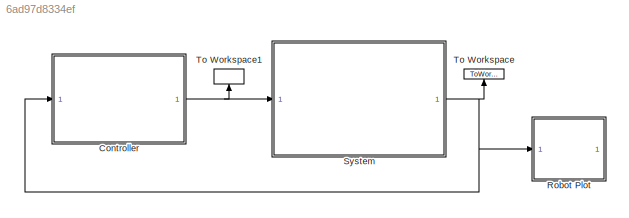
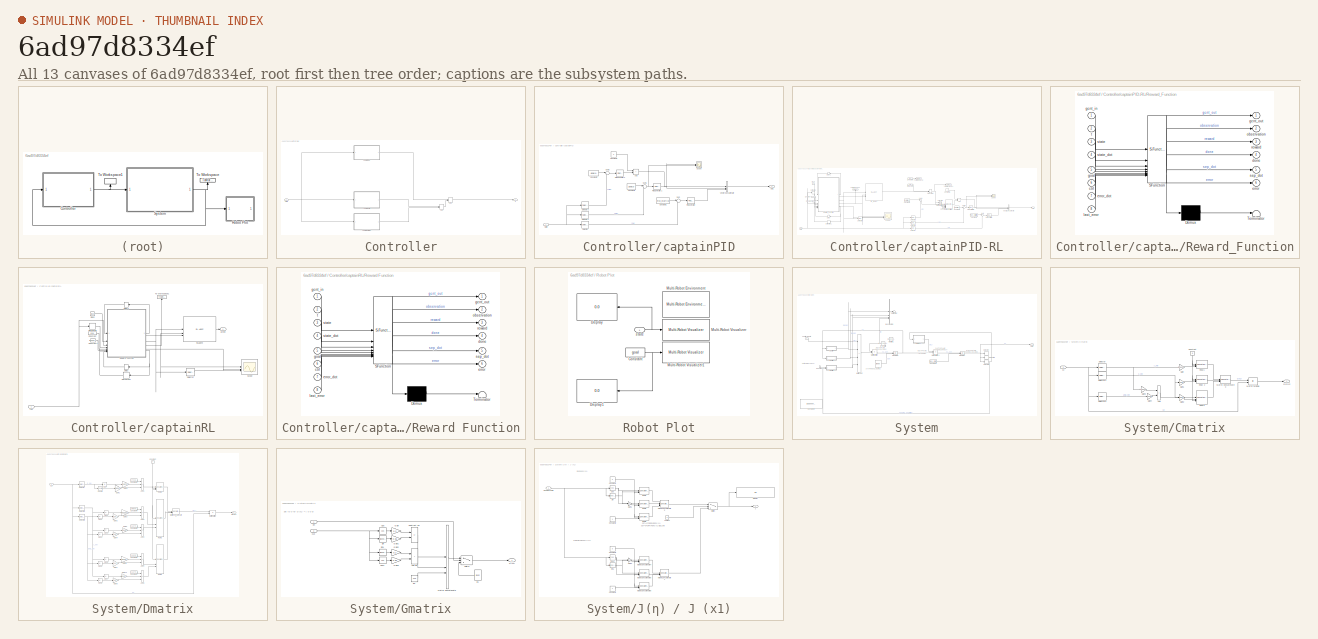
[diagram: thumbnail index - all 13 canvases of the model, root first then tree order]
MODEL slx_6ad97d8334ef
KIND model
CONFIG AbsTol = auto
CONFIG EnableMultiTasking = off
CONFIG FixedStep = 0.010
CONFIG InitFcn = [msv_start, goal] = randomStart(test);
CONFIG MaxStep = auto
CONFIG MinStep = auto
CONFIG RelTol = 1e-3
CONFIG SampleTimeConstraint = Unconstrained
CONFIG SolverName = ode4
CONFIG StartTime = 0.0
CONFIG StopTime = 20
BLOCK [SubSystem] Controller
BLOCK [SubSystem] Controller/captainPID
  Commented = on
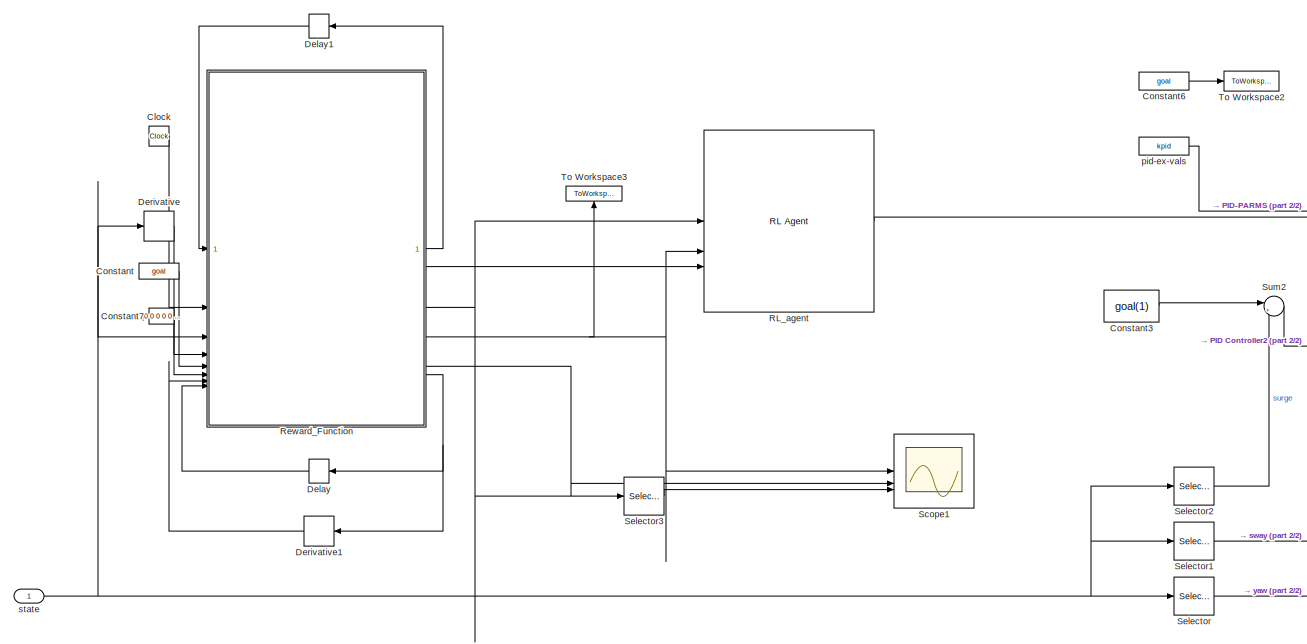
[diagram: Controller/captainPID-RL - part 1/2, left side, full height]
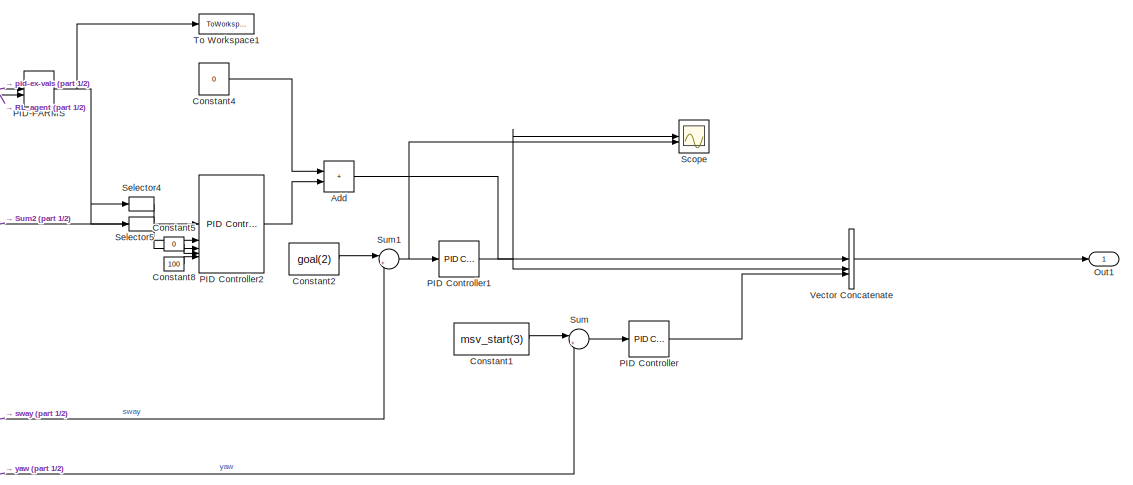
[diagram: Controller/captainPID-RL - part 2/2, middle right region]
BLOCK [SubSystem] Controller/captainPID-RL
BLOCK [Sum] Controller/captainPID-RL/Add
  IconShape = rectangular
BLOCK [Clock] Controller/captainPID-RL/Clock
BLOCK [Constant] Controller/captainPID-RL/Constant
  Value = goal
BLOCK [Constant] Controller/captainPID-RL/Constant1
  Value = msv_start(3)
  VectorParams1D = off
BLOCK [Constant] Controller/captainPID-RL/Constant2
  Value = goal(2)
  VectorParams1D = off
BLOCK [Constant] Controller/captainPID-RL/Constant3
  Value = goal(1)
  VectorParams1D = off
BLOCK [Constant] Controller/captainPID-RL/Constant4
  Value = 0
  VectorParams1D = off
BLOCK [Constant] Controller/captainPID-RL/Constant5
  Value = 0
  VectorParams1D = off
BLOCK [Constant] Controller/captainPID-RL/Constant6
  Value = goal
  VectorParams1D = off
BLOCK [Constant] Controller/captainPID-RL/Constant7
  Value = [0 0 0 0 0 0 ]'
  VectorParams1D = off
BLOCK [Constant] Controller/captainPID-RL/Constant8
  Value = 100
  VectorParams1D = off
BLOCK [Delay] Controller/captainPID-RL/Delay
  DelayLength = 1
  InputPortMap = u0
  NameLocation = top
BLOCK [Delay] Controller/captainPID-RL/Delay1
  DelayLength = 1
  InputPortMap = u0
  NameLocation = top
BLOCK [Derivative] Controller/captainPID-RL/Derivative
BLOCK [Derivative] Controller/captainPID-RL/Derivative1
  NameLocation = top
BLOCK [Outport] Controller/captainPID-RL/Out1
BLOCK [Reference] Controller/captainPID-RL/PID Controller  REF=slpidlib/PID Controller
  LibrarySourceBlock = simulink/Continuous/PID Controller
  SourceBlock = slpidlib/PID Controller
  SourceType = PID 1dof
BLOCK [Reference] Controller/captainPID-RL/PID Controller1  REF=slpidlib/PID Controller
  LibrarySourceBlock = simulink/Continuous/PID Controller
  SourceBlock = slpidlib/PID Controller
  SourceType = PID 1dof
BLOCK [Reference] Controller/captainPID-RL/PID Controller2  REF=slpidlib/PID Controller
  LibrarySourceBlock = simulink/Continuous/PID Controller
  SourceBlock = slpidlib/PID Controller
  SourceType = PID 1dof
BLOCK [ManualSwitch] Controller/captainPID-RL/PID-PARMS
  CurrentSetting = 0
BLOCK [Reference] Controller/captainPID-RL/RL_agent  REF=rllib/RL Agent
  SourceBlock = rllib/RL Agent
  SourceType = RL Agent
BLOCK [SubSystem] Controller/captainPID-RL/Reward_Function
  ErrorFcn = Stateflow.Translate.translate
  LibrarySourceBlock = simulink/User-Defined\nFunctions/MATLAB Function
  PermitHierarchicalResolution = ExplicitOnly
  SFBlockType = MATLAB Function
  TreatAsAtomicUnit = on
BLOCK [Demux] Controller/captainPID-RL/Reward_Function/ Demux 
  Outputs = 1
BLOCK [S-Function] Controller/captainPID-RL/Reward_Function/ SFunction 
  EnableBusSupport = on
  FunctionName = sf_sfun
  PortCounts = [8 7]
  SFcnIsStateOwnerBlock = off
  SFunctionDeploymentMode = off
  Tag = Stateflow S-Function 1
BLOCK [Terminator] Controller/captainPID-RL/Reward_Function/ Terminator 
BLOCK [Inport] Controller/captainPID-RL/Reward_Function/ctrl
  Port = 6
BLOCK [Outport] Controller/captainPID-RL/Reward_Function/done
  Port = 4
BLOCK [Outport] Controller/captainPID-RL/Reward_Function/error
  Port = 6
BLOCK [Inport] Controller/captainPID-RL/Reward_Function/error_dot
  Port = 7
BLOCK [Inport] Controller/captainPID-RL/Reward_Function/gcnt_in
BLOCK [Outport] Controller/captainPID-RL/Reward_Function/gcnt_out
BLOCK [Inport] Controller/captainPID-RL/Reward_Function/goal
  Port = 5
BLOCK [Inport] Controller/captainPID-RL/Reward_Function/last_error
  Port = 8
BLOCK [Outport] Controller/captainPID-RL/Reward_Function/observation
  Port = 2
BLOCK [Outport] Controller/captainPID-RL/Reward_Function/reward
  Port = 3
BLOCK [Outport] Controller/captainPID-RL/Reward_Function/sep_dot
  Port = 5
BLOCK [Inport] Controller/captainPID-RL/Reward_Function/state
  Port = 3
BLOCK [Inport] Controller/captainPID-RL/Reward_Function/state_dot
  Port = 4
BLOCK [Inport] Controller/captainPID-RL/Reward_Function/t
  Port = 2
BLOCK [Scope] Controller/captainPID-RL/Scope
  Floating = off
  NumInputPorts = 2
  ScopeSpecificationString = Simulink.scopes.TimeScopeBlockCfg('CurrentConfiguration', extmgr.ConfigurationSet(extmgr.Configuration('Core','General UI',true),extmgr.Configuration('Core','Source UI',true),extmgr.Configuration('Sources','WiredSimulink',true,'DataLoggingVariableName','ScopeData1'),extmgr.Configuration('Visuals','Time Domain',true,'SerializedDisplays',{struct('MinYLimReal','-7.66449','MaxYLimReal','17.51828','YLa...<+1385ch>
BLOCK [Scope] Controller/captainPID-RL/Scope1
  Commented = on
  Floating = off
  NumInputPorts = 3
  ScopeSpecificationString = Simulink.scopes.TimeScopeBlockCfg('CurrentConfiguration', extmgr.ConfigurationSet(extmgr.Configuration('Core','General UI',true),extmgr.Configuration('Core','Source UI',true),extmgr.Configuration('Sources','WiredSimulink',true),extmgr.Configuration('Visuals','Time Domain',true,'SerializedDisplays',{struct('MinYLimReal','-1.03091','MaxYLimReal','1.06713','YLabelReal','','MinYLimMag','0.00000','MaxY...<+1406ch>
BLOCK [Selector] Controller/captainPID-RL/Selector
  IndexOptions = Index vector (dialog)
  Indices = 3
  InputPortWidth = 3
  OutputSizes = 1
BLOCK [Selector] Controller/captainPID-RL/Selector1
  IndexOptions = Index vector (dialog)
  Indices = 2
  InputPortWidth = 3
  OutputSizes = 1
BLOCK [Selector] Controller/captainPID-RL/Selector2
  IndexOptions = Index vector (dialog)
  Indices = 1
  InputPortWidth = 3
  OutputSizes = 1
BLOCK [Selector] Controller/captainPID-RL/Selector3
  Commented = on
  IndexOptions = Index vector (dialog)
  Indices = 7
  InputPortWidth = 9
  OutputSizes = 1
BLOCK [Selector] Controller/captainPID-RL/Selector4
  IndexOptions = Index vector (dialog)
  Indices = 1
  InputPortWidth = 2
  OutputSizes = 1
BLOCK [Selector] Controller/captainPID-RL/Selector5
  IndexOptions = Index vector (dialog)
  Indices = 2
  InputPortWidth = 2
  OutputSizes = 1
BLOCK [Sum] Controller/captainPID-RL/Sum
  Inputs = |+-
BLOCK [Sum] Controller/captainPID-RL/Sum1
  Inputs = |+-
BLOCK [Sum] Controller/captainPID-RL/Sum2
  Inputs = |+-
BLOCK [ToWorkspace] Controller/captainPID-RL/To Workspace1
  FixptAsFi = on
  MaxDataPoints = inf
  SampleTime = -1
  SaveFormat = Timeseries
  VariableName = kpid
BLOCK [ToWorkspace] Controller/captainPID-RL/To Workspace2
  FixptAsFi = on
  MaxDataPoints = inf
  SampleTime = -1
  SaveFormat = Timeseries
  VariableName = goal
BLOCK [ToWorkspace] Controller/captainPID-RL/To Workspace3
  FixptAsFi = on
  MaxDataPoints = inf
  NameLocation = top
  SampleTime = -1
  SaveFormat = Timeseries
  VariableName = reward
BLOCK [Concatenate] Controller/captainPID-RL/Vector Concatenate
  NumInputs = 3
BLOCK [Constant] Controller/captainPID-RL/pid-ex-vals
  Commented = on
  Value = kpid
  VectorParams1D = off
BLOCK [Inport] Controller/captainPID-RL/state
  NameLocation = left
BLOCK [Sum] Controller/captainPID/Add
  IconShape = rectangular
BLOCK [Constant] Controller/captainPID/Constant1
  Value = msv_start(3)
  VectorParams1D = off
BLOCK [Constant] Controller/captainPID/Constant2
  Value = goal(2)
  VectorParams1D = off
BLOCK [Constant] Controller/captainPID/Constant3
  Value = goal(1)
  VectorParams1D = off
BLOCK [Constant] Controller/captainPID/Constant4
  Value = 0
  VectorParams1D = off
BLOCK [Outport] Controller/captainPID/Out1
BLOCK [Reference] Controller/captainPID/PID Controller  REF=slpidlib/PID Controller
  LibrarySourceBlock = simulink/Continuous/PID Controller
  SourceBlock = slpidlib/PID Controller
  SourceType = PID 1dof
BLOCK [Reference] Controller/captainPID/PID Controller1  REF=slpidlib/PID Controller
  LibrarySourceBlock = simulink/Continuous/PID Controller
  SourceBlock = slpidlib/PID Controller
  SourceType = PID 1dof
BLOCK [Reference] Controller/captainPID/PID Controller2  REF=slpidlib/PID Controller
  LibrarySourceBlock = simulink/Continuous/PID Controller
  SourceBlock = slpidlib/PID Controller
  SourceType = PID 1dof
BLOCK [Scope] Controller/captainPID/Scope
  Floating = off
  NumInputPorts = 2
  ScopeSpecificationString = Simulink.scopes.TimeScopeBlockCfg('CurrentConfiguration', extmgr.ConfigurationSet(extmgr.Configuration('Core','General UI',true),extmgr.Configuration('Core','Source UI',true),extmgr.Configuration('Sources','WiredSimulink',true,'DataLoggingVariableName','ScopeData1'),extmgr.Configuration('Visuals','Time Domain',true,'SerializedDisplays',{struct('MinYLimReal','-7.66449','MaxYLimReal','17.51828','YLa...<+1385ch>
BLOCK [Selector] Controller/captainPID/Selector
  IndexOptions = Index vector (dialog)
  Indices = 3
  InputPortWidth = 3
  OutputSizes = 1
BLOCK [Selector] Controller/captainPID/Selector1
  IndexOptions = Index vector (dialog)
  Indices = 2
  InputPortWidth = 3
  OutputSizes = 1
BLOCK [Selector] Controller/captainPID/Selector2
  IndexOptions = Index vector (dialog)
  Indices = 1
  InputPortWidth = 3
  OutputSizes = 1
BLOCK [Sum] Controller/captainPID/Sum
  Inputs = |+-
BLOCK [Sum] Controller/captainPID/Sum1
  Inputs = |+-
BLOCK [Sum] Controller/captainPID/Sum2
  Inputs = |+-
BLOCK [Concatenate] Controller/captainPID/Vector Concatenate
  NumInputs = 3
BLOCK [Inport] Controller/captainPID/state
  NameLocation = left
BLOCK [SubSystem] Controller/captainRL
  Commented = on
BLOCK [Clock] Controller/captainRL/Clock
BLOCK [Constant] Controller/captainRL/Constant
  Value = goal
BLOCK [Constant] Controller/captainRL/Constant1
  Value = [0 0 0 0 0 0 ]'
  VectorParams1D = off
BLOCK [Delay] Controller/captainRL/Delay
  DelayLength = 1
  InputPortMap = u0
  NameLocation = top
BLOCK [Delay] Controller/captainRL/Delay1
  DelayLength = 1
  InputPortMap = u0
  NameLocation = top
BLOCK [Derivative] Controller/captainRL/Derivative
BLOCK [Derivative] Controller/captainRL/Derivative1
  NameLocation = top
BLOCK [Inport] Controller/captainRL/In1
BLOCK [Reference] Controller/captainRL/RLagent  REF=rllib/RL Agent
  SourceBlock = rllib/RL Agent
  SourceType = RL Agent
BLOCK [SubSystem] Controller/captainRL/Reward Function
  ErrorFcn = Stateflow.Translate.translate
  LibrarySourceBlock = simulink/User-Defined\nFunctions/MATLAB Function
  PermitHierarchicalResolution = ExplicitOnly
  SFBlockType = MATLAB Function
  TreatAsAtomicUnit = on
BLOCK [Demux] Controller/captainRL/Reward Function/ Demux 
  Outputs = 1
BLOCK [S-Function] Controller/captainRL/Reward Function/ SFunction 
  EnableBusSupport = on
  FunctionName = sf_sfun
  PortCounts = [8 7]
  SFcnIsStateOwnerBlock = off
  SFunctionDeploymentMode = off
  Tag = Stateflow S-Function 2
BLOCK [Terminator] Controller/captainRL/Reward Function/ Terminator 
BLOCK [Inport] Controller/captainRL/Reward Function/ctrl
  Port = 6
BLOCK [Outport] Controller/captainRL/Reward Function/done
  Port = 4
BLOCK [Outport] Controller/captainRL/Reward Function/error
  Port = 6
BLOCK [Inport] Controller/captainRL/Reward Function/error_dot
  Port = 7
BLOCK [Inport] Controller/captainRL/Reward Function/gcnt_in
BLOCK [Outport] Controller/captainRL/Reward Function/gcnt_out
BLOCK [Inport] Controller/captainRL/Reward Function/goal
  Port = 5
BLOCK [Inport] Controller/captainRL/Reward Function/last_error
  Port = 8
BLOCK [Outport] Controller/captainRL/Reward Function/observation
  Port = 2
BLOCK [Outport] Controller/captainRL/Reward Function/reward
  Port = 3
BLOCK [Outport] Controller/captainRL/Reward Function/sep_dot
  Port = 5
BLOCK [Inport] Controller/captainRL/Reward Function/state
  Port = 3
BLOCK [Inport] Controller/captainRL/Reward Function/state_dot
  Port = 4
BLOCK [Inport] Controller/captainRL/Reward Function/t
  Port = 2
BLOCK [Scope] Controller/captainRL/Scope
  Floating = off
  NumInputPorts = 3
  ScopeSpecificationString = Simulink.scopes.TimeScopeBlockCfg('CurrentConfiguration', extmgr.ConfigurationSet(extmgr.Configuration('Core','General UI',true),extmgr.Configuration('Core','Source UI',true),extmgr.Configuration('Sources','WiredSimulink',true),extmgr.Configuration('Visuals','Time Domain',true,'SerializedDisplays',{struct('MinYLimReal','-1.03091','MaxYLimReal','1.06713','YLabelReal','','MinYLimMag','0.00000','MaxY...<+1406ch>
BLOCK [Selector] Controller/captainRL/Selector
  IndexOptions = Index vector (dialog)
  Indices = 7
  InputPortWidth = 9
  OutputSizes = 1
BLOCK [ToWorkspace] Controller/captainRL/To Workspace1
  FixptAsFi = on
  MaxDataPoints = inf
  NameLocation = right
  SampleTime = -1
  SaveFormat = Timeseries
  VariableName = reward
BLOCK [Outport] Controller/captainRL/action
BLOCK [Inport] Controller/state
  NameLocation = left
BLOCK [ManualSwitch] Controller/sw1
  CurrentSetting = 0
BLOCK [ManualSwitch] Controller/sw2
  CurrentSetting = 0
BLOCK [Outport] Controller/u
BLOCK [SubSystem] Robot Plot
  Commented = on
BLOCK [Constant] Robot Plot/Constant
  Value = goal
BLOCK [Display] Robot Plot/Display
  Decimation = 1
  NameLocation = top
BLOCK [Display] Robot Plot/Display1
  Decimation = 1
  NameLocation = top
BLOCK [Reference] Robot Plot/Multi-Robot Environment  REF=mobileRoboticsLib/Environments/Multi-Robot Environment
  SourceBlock = mobileRoboticsLib/Environments/Multi-Robot Environment
  SourceType = Multi-Robot Environment
BLOCK [Reference] Robot Plot/Multi-Robot Visualizer  REF=mobileRoboticsLib/Environments/Multi-Robot Visualizer
  SourceBlock = mobileRoboticsLib/Environments/Multi-Robot Visualizer
  SourceType = Multi-Robot Visualizer
BLOCK [Reference] Robot Plot/Multi-Robot Visualizer1  REF=mobileRoboticsLib/Environments/Multi-Robot Visualizer
  SourceBlock = mobileRoboticsLib/Environments/Multi-Robot Visualizer
  SourceType = Multi-Robot Visualizer
BLOCK [Inport] Robot Plot/state
BLOCK [SubSystem] System
BLOCK [BusCreator] System/Bus Creator1
  DisplayOption = bar
  InheritFromInputs = on
  Inputs = 4
BLOCK [SubSystem] System/Cmatrix
BLOCK [Sum] System/Cmatrix/Add
  IconShape = rectangular
BLOCK [Outport] System/Cmatrix/C(x2)x2
  NameLocation = right
BLOCK [Constant] System/Cmatrix/Constant
  NameLocation = left
  Value = 0
BLOCK [Gain] System/Cmatrix/Gain
  Gain = -24.6612
BLOCK [Gain] System/Cmatrix/Gain1
  Gain = 25.8
BLOCK [Gain] System/Cmatrix/Gain2
  Gain = -25.8
BLOCK [Gain] System/Cmatrix/Gain3
  Gain = 24.6612
BLOCK [Gain] System/Cmatrix/Gain4
  Gain = 1.0948
BLOCK [Concatenate] System/Cmatrix/Matrix Concatenate3
  Mode = Multidimensional array
  NumInputs = 3
BLOCK [Product] System/Cmatrix/Matrix Multiply
  Multiplication = Matrix(*)
BLOCK [Concatenate] System/Cmatrix/ROW 2
  ConcatenateDimension = 2
  Mode = Multidimensional array
  NumInputs = 3
BLOCK [Concatenate] System/Cmatrix/ROW1
  ConcatenateDimension = 2
  Mode = Multidimensional array
  NumInputs = 3
BLOCK [Concatenate] System/Cmatrix/ROW3
  ConcatenateDimension = 2
  Mode = Multidimensional array
  NumInputs = 3
BLOCK [Selector] System/Cmatrix/Selector
  IndexOptions = Index vector (dialog)
  Indices = 2
  InputPortWidth = 3
  OutputSizes = 1
BLOCK [Selector] System/Cmatrix/Selector1
  IndexOptions = Index vector (dialog)
  Indices = 1
  InputPortWidth = 3
  OutputSizes = 1
BLOCK [Selector] System/Cmatrix/Selector2
  IndexOptions = Index vector (dialog)
  Indices = 3
  InputPortWidth = 3
  OutputSizes = 1
BLOCK [Inport] System/Cmatrix/x2
  NameLocation = left
BLOCK [Constant] System/Constant
  Value = 0
BLOCK [Constant] System/Constant1
  Value = msv_start
  VectorParams1D = off
BLOCK [Constant] System/Constant2
  Commented = on
  Value = [25.8000 0 0; 0 24.6612 1.0948; 0 1.0948 2.7600]
  VectorParams1D = off
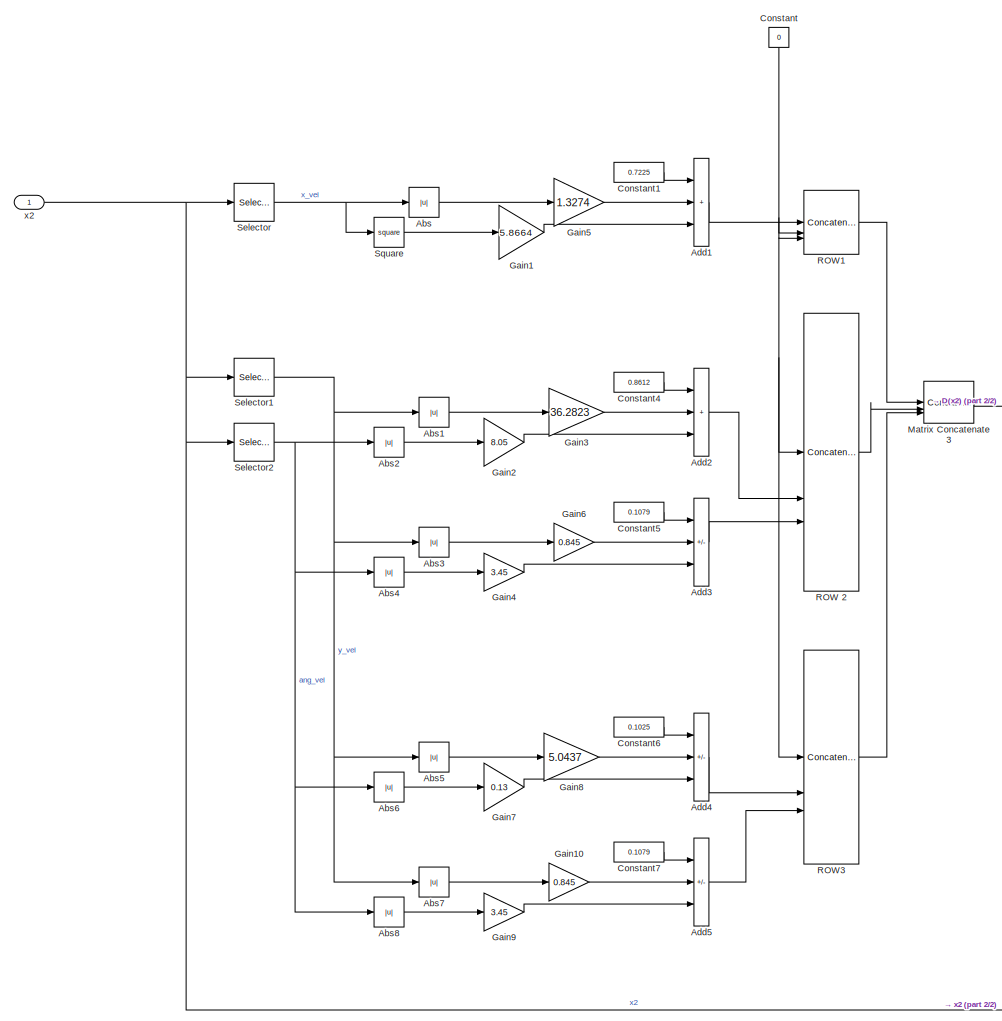
[diagram: System/Dmatrix - part 1/2, center side, full height]
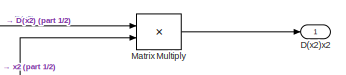
[diagram: System/Dmatrix - part 2/2, middle right region]
BLOCK [SubSystem] System/Dmatrix
BLOCK [Abs] System/Dmatrix/Abs
  SaturateOnIntegerOverflow = off
BLOCK [Abs] System/Dmatrix/Abs1
  SaturateOnIntegerOverflow = off
BLOCK [Abs] System/Dmatrix/Abs2
  SaturateOnIntegerOverflow = off
BLOCK [Abs] System/Dmatrix/Abs3
  SaturateOnIntegerOverflow = off
BLOCK [Abs] System/Dmatrix/Abs4
  SaturateOnIntegerOverflow = off
BLOCK [Abs] System/Dmatrix/Abs5
  SaturateOnIntegerOverflow = off
BLOCK [Abs] System/Dmatrix/Abs6
  SaturateOnIntegerOverflow = off
BLOCK [Abs] System/Dmatrix/Abs7
  SaturateOnIntegerOverflow = off
BLOCK [Abs] System/Dmatrix/Abs8
  SaturateOnIntegerOverflow = off
BLOCK [Sum] System/Dmatrix/Add1
  IconShape = rectangular
  Inputs = +++
BLOCK [Sum] System/Dmatrix/Add2
  IconShape = rectangular
  Inputs = +++
BLOCK [Sum] System/Dmatrix/Add3
  IconShape = rectangular
  Inputs = -++
BLOCK [Sum] System/Dmatrix/Add4
  IconShape = rectangular
  Inputs = ---
BLOCK [Sum] System/Dmatrix/Add5
  IconShape = rectangular
  Inputs = -++
BLOCK [Constant] System/Dmatrix/Constant
  NameLocation = left
  Value = 0
BLOCK [Constant] System/Dmatrix/Constant1
  Value = 0.7225
BLOCK [Constant] System/Dmatrix/Constant4
  Value = 0.8612
BLOCK [Constant] System/Dmatrix/Constant5
  Value = 0.1079
BLOCK [Constant] System/Dmatrix/Constant6
  Value = 0.1025
BLOCK [Constant] System/Dmatrix/Constant7
  Value = 0.1079
BLOCK [Outport] System/Dmatrix/D(x2)x2
  NameLocation = right
BLOCK [Gain] System/Dmatrix/Gain1
  Gain = 5.8664
BLOCK [Gain] System/Dmatrix/Gain10
  Gain = 0.845
BLOCK [Gain] System/Dmatrix/Gain2
  Gain = 8.05
BLOCK [Gain] System/Dmatrix/Gain3
  Gain = 36.2823
BLOCK [Gain] System/Dmatrix/Gain4
  Gain = 3.45
BLOCK [Gain] System/Dmatrix/Gain5
  Gain = 1.3274
BLOCK [Gain] System/Dmatrix/Gain6
  Gain = 0.845
BLOCK [Gain] System/Dmatrix/Gain7
  Gain = 0.13
BLOCK [Gain] System/Dmatrix/Gain8
  Gain = 5.0437
BLOCK [Gain] System/Dmatrix/Gain9
  Gain = 3.45
BLOCK [Concatenate] System/Dmatrix/Matrix Concatenate3
  Mode = Multidimensional array
  NumInputs = 3
BLOCK [Product] System/Dmatrix/Matrix Multiply
  Multiplication = Matrix(*)
BLOCK [Concatenate] System/Dmatrix/ROW 2
  ConcatenateDimension = 2
  Mode = Multidimensional array
  NumInputs = 3
BLOCK [Concatenate] System/Dmatrix/ROW1
  ConcatenateDimension = 2
  Mode = Multidimensional array
  NumInputs = 3
BLOCK [Concatenate] System/Dmatrix/ROW3
  ConcatenateDimension = 2
  Mode = Multidimensional array
  NumInputs = 3
BLOCK [Selector] System/Dmatrix/Selector
  IndexOptions = Index vector (dialog)
  Indices = 1
  InputPortWidth = 3
  OutputSizes = 1
BLOCK [Selector] System/Dmatrix/Selector1
  IndexOptions = Index vector (dialog)
  Indices = 2
  InputPortWidth = 3
  OutputSizes = 1
BLOCK [Selector] System/Dmatrix/Selector2
  IndexOptions = Index vector (dialog)
  Indices = 3
  InputPortWidth = 3
  OutputSizes = 1
BLOCK [Math] System/Dmatrix/Square
  Operator = square
BLOCK [Inport] System/Dmatrix/x2
  NameLocation = left
BLOCK [SubSystem] System/Gmatrix
BLOCK [Sum] System/Gmatrix/Add g2
  IconShape = rectangular
BLOCK [Trigonometry] System/Gmatrix/Cos
  Operator = cos
BLOCK [Trigonometry] System/Gmatrix/Cos1
  Operator = cos
BLOCK [Outport] System/Gmatrix/G(x1)
  NameLocation = right
BLOCK [Gain] System/Gmatrix/Gain
  Gain = 0.2
BLOCK [Gain] System/Gmatrix/Gain1
  Gain = 0.36
BLOCK [Gain] System/Gmatrix/Gain2
  Gain = 0.2
BLOCK [Gain] System/Gmatrix/Gain3
  Gain = 0.36
BLOCK [Concatenate] System/Gmatrix/Matrix Concatenate
  Mode = Multidimensional array
  NumInputs = 3
BLOCK [Trigonometry] System/Gmatrix/Sin
BLOCK [Trigonometry] System/Gmatrix/Sin1
BLOCK [Sum] System/Gmatrix/Subtract g1
  IconShape = rectangular
  Inputs = +-
BLOCK [Switch] System/Gmatrix/Switch
  Criteria = u2 > Threshold
  InputSameDT = off
  SaturateOnIntegerOverflow = off
BLOCK [Inport] System/Gmatrix/en
  NameLocation = left
BLOCK [Constant] System/Gmatrix/g1
  NameLocation = top
  Value = [0 0 0]'
  VectorParams1D = off
BLOCK [Constant] System/Gmatrix/g3
  Value = 0.18
BLOCK [Inport] System/Gmatrix/x13
  NameLocation = left
  Port = 2
BLOCK [Integrator] System/Integrator
  InitialConditionSource = external
BLOCK [Integrator] System/Integrator1
  IgnoreLimit = on
  InitialConditionSource = external
BLOCK [SubSystem] System/J(η) // J (x1)
BLOCK [Constant] System/J(η) // J (x1)/Constant1
  Value = 0
BLOCK [Constant] System/J(η) // J (x1)/Constant2
BLOCK [Constant] System/J(η) // J (x1)/Constant3
  Value = 0
BLOCK [Constant] System/J(η) // J (x1)/Constant4
BLOCK [Trigonometry] System/J(η) // J (x1)/Cos
  Operator = cos
  OutputSignalType = real
BLOCK [Trigonometry] System/J(η) // J (x1)/Cos1
  Operator = cos
  OutputSignalType = real
BLOCK [Display] System/J(η) // J (x1)/Display
  Decimation = 1
BLOCK [Gain] System/J(η) // J (x1)/Gain1
  Gain = -1
BLOCK [Gain] System/J(η) // J (x1)/Gain2
  Gain = -1
BLOCK [Inport] System/J(η) // J (x1)/Heading Angle
BLOCK [Outport] System/J(η) // J (x1)/J
BLOCK [Constant] System/J(η) // J (x1)/J select
  Value = 0
BLOCK [Concatenate] System/J(η) // J (x1)/Matrix Concatenate3
  Mode = Multidimensional array
  NumInputs = 3
BLOCK [Concatenate] System/J(η) // J (x1)/Matrix Concatenate4
  ConcatenateDimension = 2
  Mode = Multidimensional array
  NumInputs = 3
BLOCK [Concatenate] System/J(η) // J (x1)/Matrix Concatenate5
  ConcatenateDimension = 2
  Mode = Multidimensional array
  NumInputs = 3
BLOCK [Concatenate] System/J(η) // J (x1)/Matrix Concatenate6
  ConcatenateDimension = 2
  Mode = Multidimensional array
  NumInputs = 3
BLOCK [Concatenate] System/J(η) // J (x1)/Matrix Concatenate7
  Mode = Multidimensional array
  NumInputs = 3
BLOCK [Concatenate] System/J(η) // J (x1)/ROW 2
  ConcatenateDimension = 2
  Mode = Multidimensional array
  NumInputs = 3
BLOCK [Concatenate] System/J(η) // J (x1)/ROW1
  ConcatenateDimension = 2
  Mode = Multidimensional array
  NumInputs = 3
BLOCK [Concatenate] System/J(η) // J (x1)/ROW3
  ConcatenateDimension = 2
  Mode = Multidimensional array
  NumInputs = 3
BLOCK [Trigonometry] System/J(η) // J (x1)/Sin
BLOCK [Trigonometry] System/J(η) // J (x1)/Sin1
BLOCK [Switch] System/J(η) // J (x1)/Switch
  Criteria = u2 > Threshold
  InputSameDT = off
  SaturateOnIntegerOverflow = off
BLOCK [Constant] System/M matrix1
  Commented = on
  NameLocation = top
  Value = [25.8000 0 0; 0 24.6612 1.0948; 0 1.0948 2.7600]
  VectorParams1D = off
BLOCK [Constant] System/M^-1 matrix
  NameLocation = top
  Value = [0.038759689922481,0,0;0,0.041276382418969,-0.016372965026191;0,-0.016372965026191,0.368813450040099]
  VectorParams1D = off
BLOCK [Product] System/Matrix Multiply
  Multiplication = Matrix(*)
BLOCK [Sum] System/Matrix Sum
  IconShape = rectangular
  Inputs = +---
BLOCK [Product] System/MatrixMultiply1
  Multiplication = Matrix(*)
BLOCK [Selector] System/Selector
  IndexOptions = Index vector (dialog)
  Indices = 1
  InputPortWidth = 3
  OutputSizes = 1
BLOCK [Selector] System/Selector1
  IndexOptions = Index vector (dialog)
  Indices = 2
  InputPortWidth = 3
  OutputSizes = 1
BLOCK [Selector] System/Selector2
  IndexOptions = Index vector (dialog)
  Indices = 3
  InputPortWidth = 3
  OutputSizes = 1
BLOCK [Terminator] System/Terminator
BLOCK [Inport] System/control_inputs
  NameLocation = left
BLOCK [Outport] System/state
  NameLocation = right
BLOCK [Constant] System/x2(0)
  NameLocation = left
  Value = [0 0 0]'
  VectorParams1D = off
BLOCK [ToWorkspace] To Workspace
  FixptAsFi = on
  MaxDataPoints = inf
  NameLocation = right
  SampleTime = -1
  SaveFormat = Timeseries
  VariableName = states
BLOCK [ToWorkspace] To Workspace1
  FixptAsFi = on
  MaxDataPoints = inf
  NameLocation = right
  SampleTime = -1
  SaveFormat = Timeseries
  VariableName = ctrl
ANNOTATION System: BOAT FRAME ACCELERATIONS
ANNOTATION System: BOAT FRAME VELOCITIES
ANNOTATION System: EARTH FRAME POSITION + HEADING
ANNOTATION System: EARTH FRAME VELOCITIES OF BOAT
ANNOTATION System: STARTING VELOCITIES
ANNOTATION System: Set to 0 for G(x1) = [ 0 0 0]
ANNOTATION System/Gmatrix: Set to 0 for G(x1) = [ 0 0 0]
ANNOTATION System/J(η) // J (x1): SET = 1 FOR REVISED J(x1)
ANNOTATION System/J(η) // J (x1): SET = 0 FOR PAPER J(x1) [BELOW]
ANNOTATION System/J(η) // J (x1): Original from paper J(x1)
ANNOTATION System/J(η) // J (x1): Revised J(x1)
LINE Controller/captainPID-RL/Add:1 -> Controller/captainPID-RL/Vector Concatenate:1
LINE Controller/captainPID-RL/Clock:1 -> Controller/captainPID-RL/Reward_Function:2
LINE Controller/captainPID-RL/Constant1:1 -> Controller/captainPID-RL/Sum:1
LINE Controller/captainPID-RL/Constant2:1 -> Controller/captainPID-RL/Sum1:1
LINE Controller/captainPID-RL/Constant3:1 -> Controller/captainPID-RL/Sum2:1
LINE Controller/captainPID-RL/Constant4:1 -> Controller/captainPID-RL/Add:1
LINE Controller/captainPID-RL/Constant5:1 -> Controller/captainPID-RL/PID Controller2:4
LINE Controller/captainPID-RL/Constant6:1 -> Controller/captainPID-RL/To Workspace2:1
LINE Controller/captainPID-RL/Constant7:1 -> Controller/captainPID-RL/Reward_Function:6
LINE Controller/captainPID-RL/Constant8:1 -> Controller/captainPID-RL/PID Controller2:5
LINE Controller/captainPID-RL/Constant:1 -> Controller/captainPID-RL/Reward_Function:5
LINE Controller/captainPID-RL/Delay1:1 -> Controller/captainPID-RL/Reward_Function:1
LINE Controller/captainPID-RL/Delay:1 -> Controller/captainPID-RL/Reward_Function:8
LINE Controller/captainPID-RL/Derivative1:1 -> Controller/captainPID-RL/Reward_Function:7
LINE Controller/captainPID-RL/Derivative:1 -> Controller/captainPID-RL/Reward_Function:4
NET Controller/captainPID-RL/PID Controller1:1 -> Controller/captainPID-RL/Scope:1, Controller/captainPID-RL/Vector Concatenate:2
LINE Controller/captainPID-RL/PID Controller2:1 -> Controller/captainPID-RL/Add:2
LINE Controller/captainPID-RL/PID Controller:1 -> Controller/captainPID-RL/Vector Concatenate:3
NET Controller/captainPID-RL/PID-PARMS:1 -> Controller/captainPID-RL/Selector4:1, Controller/captainPID-RL/Selector5:1, Controller/captainPID-RL/To Workspace1:1
LINE Controller/captainPID-RL/RL_agent:1 -> Controller/captainPID-RL/PID-PARMS:2
LINE Controller/captainPID-RL/Reward_Function:1 -> Controller/captainPID-RL/Delay1:1
NET Controller/captainPID-RL/Reward_Function:2 -> Controller/captainPID-RL/RL_agent:1, Controller/captainPID-RL/Selector3:1
NET Controller/captainPID-RL/Reward_Function:3 -> Controller/captainPID-RL/RL_agent:2, Controller/captainPID-RL/Scope1:1, Controller/captainPID-RL/To Workspace3:1
LINE Controller/captainPID-RL/Reward_Function:4 -> Controller/captainPID-RL/RL_agent:3
LINE Controller/captainPID-RL/Reward_Function:5 -> Controller/captainPID-RL/Scope1:2
NET Controller/captainPID-RL/Reward_Function:6 -> Controller/captainPID-RL/Delay:1, Controller/captainPID-RL/Derivative1:1
LINE Controller/captainPID-RL/Selector1:1 -> Controller/captainPID-RL/Sum1:2
LINE Controller/captainPID-RL/Selector2:1 -> Controller/captainPID-RL/Sum2:2
LINE Controller/captainPID-RL/Selector3:1 -> Controller/captainPID-RL/Scope1:3
LINE Controller/captainPID-RL/Selector4:1 -> Controller/captainPID-RL/PID Controller2:2
LINE Controller/captainPID-RL/Selector5:1 -> Controller/captainPID-RL/PID Controller2:3
LINE Controller/captainPID-RL/Selector:1 -> Controller/captainPID-RL/Sum:2
NET Controller/captainPID-RL/Sum1:1 -> Controller/captainPID-RL/PID Controller1:1, Controller/captainPID-RL/Scope:2
LINE Controller/captainPID-RL/Sum2:1 -> Controller/captainPID-RL/PID Controller2:1
LINE Controller/captainPID-RL/Sum:1 -> Controller/captainPID-RL/PID Controller:1
LINE Controller/captainPID-RL/Vector Concatenate:1 -> Controller/captainPID-RL/Out1:1
LINE Controller/captainPID-RL/pid-ex-vals:1 -> Controller/captainPID-RL/PID-PARMS:1
NET Controller/captainPID-RL/state:1 -> Controller/captainPID-RL/Derivative:1, Controller/captainPID-RL/Reward_Function:3, Controller/captainPID-RL/Selector1:1, Controller/captainPID-RL/Selector2:1, Controller/captainPID-RL/Selector:1
LINE Controller/captainPID-RL:1 -> Controller/sw2:2
LINE Controller/captainPID/Add:1 -> Controller/captainPID/Vector Concatenate:1
LINE Controller/captainPID/Constant1:1 -> Controller/captainPID/Sum:1
LINE Controller/captainPID/Constant2:1 -> Controller/captainPID/Sum1:1
LINE Controller/captainPID/Constant3:1 -> Controller/captainPID/Sum2:1
LINE Controller/captainPID/Constant4:1 -> Controller/captainPID/Add:1
NET Controller/captainPID/PID Controller1:1 -> Controller/captainPID/Scope:1, Controller/captainPID/Vector Concatenate:2
LINE Controller/captainPID/PID Controller2:1 -> Controller/captainPID/Add:2
LINE Controller/captainPID/PID Controller:1 -> Controller/captainPID/Vector Concatenate:3
LINE Controller/captainPID/Selector1:1 -> Controller/captainPID/Sum1:2
LINE Controller/captainPID/Selector2:1 -> Controller/captainPID/Sum2:2
LINE Controller/captainPID/Selector:1 -> Controller/captainPID/Sum:2
NET Controller/captainPID/Sum1:1 -> Controller/captainPID/PID Controller1:1, Controller/captainPID/Scope:2
LINE Controller/captainPID/Sum2:1 -> Controller/captainPID/PID Controller2:1
LINE Controller/captainPID/Sum:1 -> Controller/captainPID/PID Controller:1
LINE Controller/captainPID/Vector Concatenate:1 -> Controller/captainPID/Out1:1
NET Controller/captainPID/state:1 -> Controller/captainPID/Selector1:1, Controller/captainPID/Selector2:1, Controller/captainPID/Selector:1
LINE Controller/captainPID:1 -> Controller/sw2:1
LINE Controller/captainRL/Clock:1 -> Controller/captainRL/Reward Function:2
LINE Controller/captainRL/Constant1:1 -> Controller/captainRL/Reward Function:6
LINE Controller/captainRL/Constant:1 -> Controller/captainRL/Reward Function:5
LINE Controller/captainRL/Delay1:1 -> Controller/captainRL/Reward Function:1
LINE Controller/captainRL/Delay:1 -> Controller/captainRL/Reward Function:8
LINE Controller/captainRL/Derivative1:1 -> Controller/captainRL/Reward Function:7
LINE Controller/captainRL/Derivative:1 -> Controller/captainRL/Reward Function:4
NET Controller/captainRL/In1:1 -> Controller/captainRL/Derivative:1, Controller/captainRL/Reward Function:3
LINE Controller/captainRL/RLagent:1 -> Controller/captainRL/action:1
LINE Controller/captainRL/Reward Function:1 -> Controller/captainRL/Delay1:1
NET Controller/captainRL/Reward Function:2 -> Controller/captainRL/RLagent:1, Controller/captainRL/Selector:1
NET Controller/captainRL/Reward Function:3 -> Controller/captainRL/RLagent:2, Controller/captainRL/Scope:1, Controller/captainRL/To Workspace1:1
LINE Controller/captainRL/Reward Function:4 -> Controller/captainRL/RLagent:3
LINE Controller/captainRL/Reward Function:5 -> Controller/captainRL/Scope:2
NET Controller/captainRL/Reward Function:6 -> Controller/captainRL/Delay:1, Controller/captainRL/Derivative1:1
LINE Controller/captainRL/Selector:1 -> Controller/captainRL/Scope:3
LINE Controller/captainRL:1 -> Controller/sw1:1
NET Controller/state:1 -> Controller/captainPID-RL:1, Controller/captainPID:1, Controller/captainRL:1
LINE Controller/sw1:1 -> Controller/u:1
LINE Controller/sw2:1 -> Controller/sw1:2
NET Controller:1 -> System:1, To Workspace1:1
NET Robot Plot/Constant:1 -> Robot Plot/Display1:1, Robot Plot/Multi-Robot Visualizer1:1
NET Robot Plot/state:1 -> Robot Plot/Display:1, Robot Plot/Multi-Robot Visualizer:1
LINE System/Bus Creator1:1 -> System/Terminator:1
LINE System/Cmatrix/Add:1 -> System/Cmatrix/ROW3:1
NET System/Cmatrix/Constant:1 -> System/Cmatrix/ROW 2:1, System/Cmatrix/ROW 2:2, System/Cmatrix/ROW1:1, System/Cmatrix/ROW1:2, System/Cmatrix/ROW3:3
LINE System/Cmatrix/Gain1:1 -> System/Cmatrix/ROW 2:3
LINE System/Cmatrix/Gain2:1 -> System/Cmatrix/ROW3:2
LINE System/Cmatrix/Gain3:1 -> System/Cmatrix/Add:1
LINE System/Cmatrix/Gain4:1 -> System/Cmatrix/Add:2
LINE System/Cmatrix/Gain:1 -> System/Cmatrix/ROW1:3
LINE System/Cmatrix/Matrix Concatenate3:1 -> System/Cmatrix/Matrix Multiply:1
LINE System/Cmatrix/Matrix Multiply:1 -> System/Cmatrix/C(x2)x2:1
LINE System/Cmatrix/ROW 2:1 -> System/Cmatrix/Matrix Concatenate3:2
LINE System/Cmatrix/ROW1:1 -> System/Cmatrix/Matrix Concatenate3:1
LINE System/Cmatrix/ROW3:1 -> System/Cmatrix/Matrix Concatenate3:3
NET System/Cmatrix/Selector1:1 -> System/Cmatrix/Gain1:1, System/Cmatrix/Gain2:1
LINE System/Cmatrix/Selector2:1 -> System/Cmatrix/Gain4:1
NET System/Cmatrix/Selector:1 -> System/Cmatrix/Gain3:1, System/Cmatrix/Gain:1
NET System/Cmatrix/x2:1 -> System/Cmatrix/Matrix Multiply:2, System/Cmatrix/Selector1:1, System/Cmatrix/Selector2:1, System/Cmatrix/Selector:1
NET System/Cmatrix:1 -> System/Bus Creator1:1, System/Matrix Sum:2
LINE System/Constant1:1 -> System/Integrator:2
LINE System/Constant:1 -> System/Gmatrix:1
LINE System/Dmatrix/Abs1:1 -> System/Dmatrix/Gain3:1
LINE System/Dmatrix/Abs2:1 -> System/Dmatrix/Gain2:1
LINE System/Dmatrix/Abs3:1 -> System/Dmatrix/Gain6:1
LINE System/Dmatrix/Abs4:1 -> System/Dmatrix/Gain4:1
LINE System/Dmatrix/Abs5:1 -> System/Dmatrix/Gain8:1
LINE System/Dmatrix/Abs6:1 -> System/Dmatrix/Gain7:1
LINE System/Dmatrix/Abs7:1 -> System/Dmatrix/Gain10:1
LINE System/Dmatrix/Abs8:1 -> System/Dmatrix/Gain9:1
LINE System/Dmatrix/Abs:1 -> System/Dmatrix/Gain5:1
LINE System/Dmatrix/Add1:1 -> System/Dmatrix/ROW1:1
LINE System/Dmatrix/Add2:1 -> System/Dmatrix/ROW 2:2
LINE System/Dmatrix/Add3:1 -> System/Dmatrix/ROW 2:3
LINE System/Dmatrix/Add4:1 -> System/Dmatrix/ROW3:2
LINE System/Dmatrix/Add5:1 -> System/Dmatrix/ROW3:3
LINE System/Dmatrix/Constant1:1 -> System/Dmatrix/Add1:1
LINE System/Dmatrix/Constant4:1 -> System/Dmatrix/Add2:1
LINE System/Dmatrix/Constant5:1 -> System/Dmatrix/Add3:1
LINE System/Dmatrix/Constant6:1 -> System/Dmatrix/Add4:1
LINE System/Dmatrix/Constant7:1 -> System/Dmatrix/Add5:1
NET System/Dmatrix/Constant:1 -> System/Dmatrix/ROW 2:1, System/Dmatrix/ROW1:2, System/Dmatrix/ROW1:3, System/Dmatrix/ROW3:1
LINE System/Dmatrix/Gain10:1 -> System/Dmatrix/Add5:2
LINE System/Dmatrix/Gain1:1 -> System/Dmatrix/Add1:3
LINE System/Dmatrix/Gain2:1 -> System/Dmatrix/Add2:3
LINE System/Dmatrix/Gain3:1 -> System/Dmatrix/Add2:2
LINE System/Dmatrix/Gain4:1 -> System/Dmatrix/Add3:3
LINE System/Dmatrix/Gain5:1 -> System/Dmatrix/Add1:2
LINE System/Dmatrix/Gain6:1 -> System/Dmatrix/Add3:2
LINE System/Dmatrix/Gain7:1 -> System/Dmatrix/Add4:3
LINE System/Dmatrix/Gain8:1 -> System/Dmatrix/Add4:2
LINE System/Dmatrix/Gain9:1 -> System/Dmatrix/Add5:3
LINE System/Dmatrix/Matrix Concatenate3:1 -> System/Dmatrix/Matrix Multiply:1
LINE System/Dmatrix/Matrix Multiply:1 -> System/Dmatrix/D(x2)x2:1
LINE System/Dmatrix/ROW 2:1 -> System/Dmatrix/Matrix Concatenate3:2
LINE System/Dmatrix/ROW1:1 -> System/Dmatrix/Matrix Concatenate3:1
LINE System/Dmatrix/ROW3:1 -> System/Dmatrix/Matrix Concatenate3:3
NET System/Dmatrix/Selector1:1 -> System/Dmatrix/Abs1:1, System/Dmatrix/Abs3:1, System/Dmatrix/Abs5:1, System/Dmatrix/Abs7:1
NET System/Dmatrix/Selector2:1 -> System/Dmatrix/Abs2:1, System/Dmatrix/Abs4:1, System/Dmatrix/Abs6:1, System/Dmatrix/Abs8:1
NET System/Dmatrix/Selector:1 -> System/Dmatrix/Abs:1, System/Dmatrix/Square:1
LINE System/Dmatrix/Square:1 -> System/Dmatrix/Gain1:1
NET System/Dmatrix/x2:1 -> System/Dmatrix/Matrix Multiply:2, System/Dmatrix/Selector1:1, System/Dmatrix/Selector2:1, System/Dmatrix/Selector:1
NET System/Dmatrix:1 -> System/Bus Creator1:2, System/Matrix Sum:3
LINE System/Gmatrix/Add g2:1 -> System/Gmatrix/Matrix Concatenate:2
LINE System/Gmatrix/Cos1:1 -> System/Gmatrix/Gain3:1
LINE System/Gmatrix/Cos:1 -> System/Gmatrix/Gain:1
LINE System/Gmatrix/Gain1:1 -> System/Gmatrix/Subtract g1:2
LINE System/Gmatrix/Gain2:1 -> System/Gmatrix/Add g2:1
LINE System/Gmatrix/Gain3:1 -> System/Gmatrix/Add g2:2
LINE System/Gmatrix/Gain:1 -> System/Gmatrix/Subtract g1:1
LINE System/Gmatrix/Matrix Concatenate:1 -> System/Gmatrix/Switch:1
LINE System/Gmatrix/Sin1:1 -> System/Gmatrix/Gain2:1
LINE System/Gmatrix/Sin:1 -> System/Gmatrix/Gain1:1
LINE System/Gmatrix/Subtract g1:1 -> System/Gmatrix/Matrix Concatenate:1
LINE System/Gmatrix/Switch:1 -> System/Gmatrix/G(x1):1
LINE System/Gmatrix/en:1 -> System/Gmatrix/Switch:2
LINE System/Gmatrix/g1:1 -> System/Gmatrix/Switch:3
LINE System/Gmatrix/g3:1 -> System/Gmatrix/Matrix Concatenate:3
NET System/Gmatrix/x13:1 -> System/Gmatrix/Cos1:1, System/Gmatrix/Cos:1, System/Gmatrix/Sin1:1, System/Gmatrix/Sin:1
NET System/Gmatrix:1 -> System/Bus Creator1:3, System/Matrix Sum:4
NET System/Integrator1:1 -> System/Cmatrix:1, System/Dmatrix:1, System/MatrixMultiply1:2
NET System/Integrator:1 -> System/Selector1:1, System/Selector2:1, System/Selector:1, System/state:1
NET System/J(η) // J (x1)/Constant1:1 -> System/J(η) // J (x1)/ROW 2:3, System/J(η) // J (x1)/ROW1:3, System/J(η) // J (x1)/ROW3:1, System/J(η) // J (x1)/ROW3:2
LINE System/J(η) // J (x1)/Constant2:1 -> System/J(η) // J (x1)/ROW3:3
NET System/J(η) // J (x1)/Constant3:1 -> System/J(η) // J (x1)/Matrix Concatenate4:3, System/J(η) // J (x1)/Matrix Concatenate5:3, System/J(η) // J (x1)/Matrix Concatenate6:1, System/J(η) // J (x1)/Matrix Concatenate6:2
LINE System/J(η) // J (x1)/Constant4:1 -> System/J(η) // J (x1)/Matrix Concatenate6:3
NET System/J(η) // J (x1)/Cos1:1 -> System/J(η) // J (x1)/Matrix Concatenate4:1, System/J(η) // J (x1)/Matrix Concatenate5:2
NET System/J(η) // J (x1)/Cos:1 -> System/J(η) // J (x1)/Gain1:1, System/J(η) // J (x1)/ROW1:1
LINE System/J(η) // J (x1)/Gain1:1 -> System/J(η) // J (x1)/ROW 2:2
LINE System/J(η) // J (x1)/Gain2:1 -> System/J(η) // J (x1)/Matrix Concatenate4:2
NET System/J(η) // J (x1)/Heading Angle:1 -> System/J(η) // J (x1)/Cos1:1, System/J(η) // J (x1)/Cos:1, System/J(η) // J (x1)/Sin1:1, System/J(η) // J (x1)/Sin:1
LINE System/J(η) // J (x1)/J select:1 -> System/J(η) // J (x1)/Switch:2
LINE System/J(η) // J (x1)/Matrix Concatenate3:1 -> System/J(η) // J (x1)/Switch:1
LINE System/J(η) // J (x1)/Matrix Concatenate4:1 -> System/J(η) // J (x1)/Matrix Concatenate7:1
LINE System/J(η) // J (x1)/Matrix Concatenate5:1 -> System/J(η) // J (x1)/Matrix Concatenate7:2
LINE System/J(η) // J (x1)/Matrix Concatenate6:1 -> System/J(η) // J (x1)/Matrix Concatenate7:3
LINE System/J(η) // J (x1)/Matrix Concatenate7:1 -> System/J(η) // J (x1)/Switch:3
LINE System/J(η) // J (x1)/ROW 2:1 -> System/J(η) // J (x1)/Matrix Concatenate3:2
LINE System/J(η) // J (x1)/ROW1:1 -> System/J(η) // J (x1)/Matrix Concatenate3:1
LINE System/J(η) // J (x1)/ROW3:1 -> System/J(η) // J (x1)/Matrix Concatenate3:3
NET System/J(η) // J (x1)/Sin1:1 -> System/J(η) // J (x1)/Gain2:1, System/J(η) // J (x1)/Matrix Concatenate5:1
NET System/J(η) // J (x1)/Sin:1 -> System/J(η) // J (x1)/ROW 2:1, System/J(η) // J (x1)/ROW1:2
NET System/J(η) // J (x1)/Switch:1 -> System/J(η) // J (x1)/Display:1, System/J(η) // J (x1)/J:1
LINE System/J(η) // J (x1):1 -> System/MatrixMultiply1:1
NET System/M^-1 matrix:1 -> System/Bus Creator1:4, System/Matrix Multiply:1
LINE System/Matrix Multiply:1 -> System/Integrator1:1
LINE System/Matrix Sum:1 -> System/Matrix Multiply:2
LINE System/MatrixMultiply1:1 -> System/Integrator:1
NET System/Selector2:1 -> System/Gmatrix:2, System/J(η) // J (x1):1
LINE System/control_inputs:1 -> System/Matrix Sum:1
LINE System/x2(0):1 -> System/Integrator1:2
NET System:1 -> Controller:1, Robot Plot:1, To Workspace:1
note: NET lines group one-source signal fan-out (src -> all destinations, sorted); 1:1 wires keep LINE
CHART Controller/captainPID-RL/Reward_Function states=1 transitions=1
  STATE_LABEL 'eML_blk_kernel()'
  STATE_LABEL 'SCRIPT:\nfunction [gcnt_out, observation, reward, done, sep_dot ,error] = fcn(gcnt_in, t, state, state_dot, goal, ctrl, error_dot, last_error)\n\n    \n    tstep = 0.01;\n\n    error       = goal - state;\n    error(3)    = 0;\n    velocity    = state_dot;\n    velocity(3) = 0;\n   \n\n    % Reward allocation\n    rw_sep      = 0;    % Start rewards at zero\n    rw_sep_dist = 0; \n    rw_sep_dot  = 0;\n\n    rw_ct...<+793ch>'
CHART Controller/captainRL/Reward Function states=1 transitions=1
  STATE_LABEL 'eML_blk_kernel()'
  STATE_LABEL 'SCRIPT:\nfunction [gcnt_out, observation, reward, done, sep_dot ,error] = fcn(gcnt_in, t, state, state_dot, goal, ctrl, error_dot, last_error)\n\n    \n    tstep = 0.01;\n\n    error       = goal - state;\n    error(3)    = 0;\n    velocity    = state_dot;\n    velocity(3) = 0;\n   \n\n    % Reward allocation\n    rw_sep      = 0;    % Start rewards at zero\n    rw_sep_dist = 0; \n    rw_sep_dot  = 0;\n\n    rw_ct...<+793ch>'
CHART  states=0 transitions=0
CHART  states=0 transitions=0
